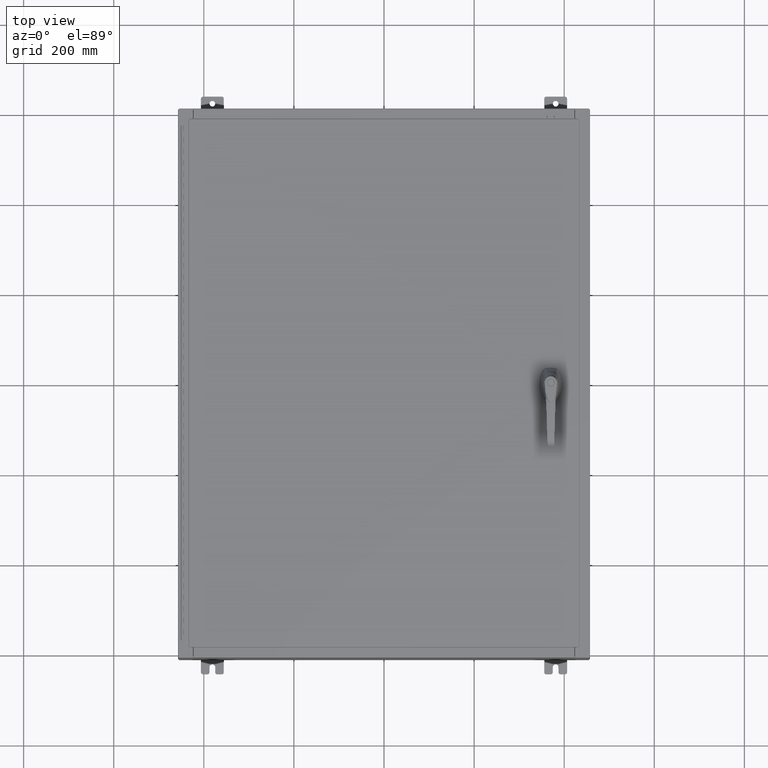
[diagram: clean part render]
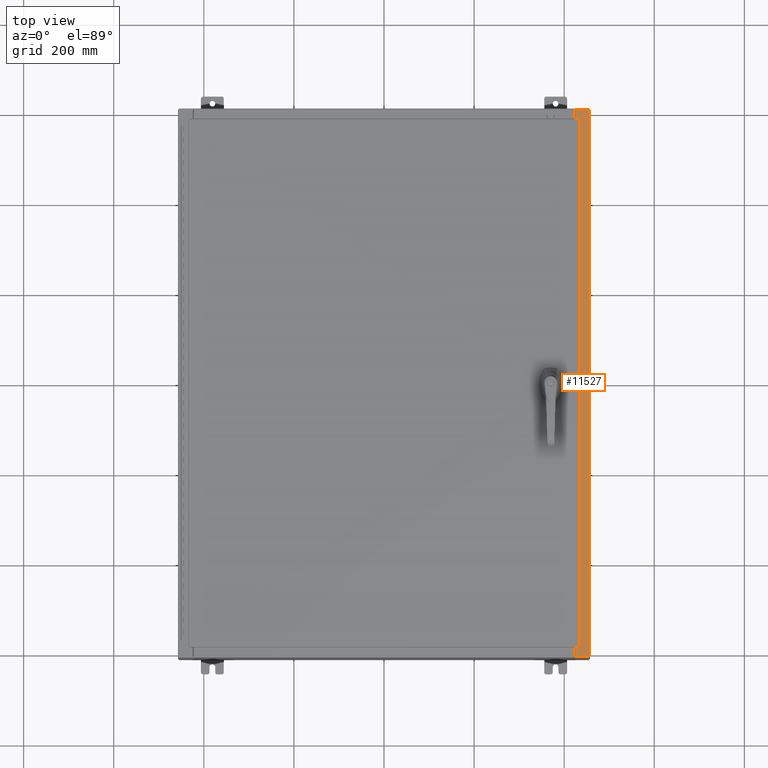
[diagram: same view with one face highlighted and labeled with its STEP entity id]
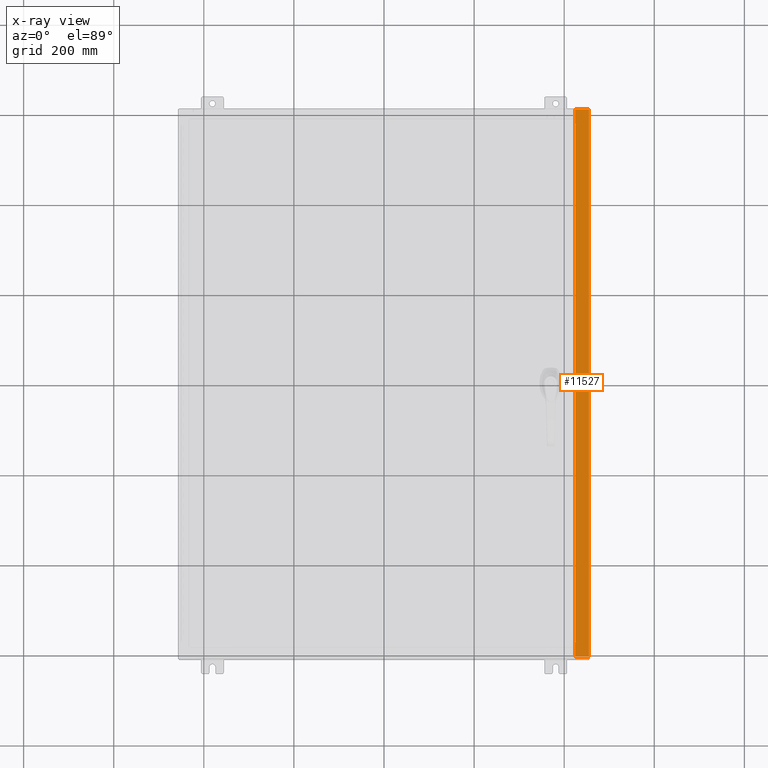
[diagram: x-ray of the same camera — body ghosted, the highlighted face saturated]
A machine part, top view. The second image highlights one B-rep face of the part: STEP entity #11527.
The next image is the same camera in x-ray: the body ghosted, the highlighted face saturated — about 0% of this face is hidden behind the body in this view.
In plain terms, the highlighted planar face has unit normal (-0, 0, -1).
Its self-contained STEP definition (entity closure, byte-faithful):
#1108 = VERTEX_POINT ( 'NONE', #105679 ) ;
#1683 = ORIENTED_EDGE ( 'NONE', *, *, #39744, .F. ) ;
#2512 = EDGE_CURVE ( 'NONE', #1108, #116192, #68899, .T. ) ;
#4372 = PLANE ( 'NONE',  #101994 ) ;
#5238 = ORIENTED_EDGE ( 'NONE', *, *, #133014, .T. ) ;
#5310 = DIRECTION ( 'NONE',  ( -0.0000000000000000000, -1.000000000000000000, -0.0000000000000000000 ) ) ;
#6908 = VECTOR ( 'NONE', #64470, 39.37007874015748100 ) ;
#7468 = LINE ( 'NONE', #85324, #35060 ) ;
#7719 = FACE_OUTER_BOUND ( 'NONE', #97168, .T. ) ;
#9457 = VECTOR ( 'NONE', #73568, 39.37007874015748100 ) ;
#10192 = LINE ( 'NONE', #95783, #6908 ) ;
#10603 = VECTOR ( 'NONE', #5310, 39.37007874015748100 ) ;
#10846 = DIRECTION ( 'NONE',  ( 1.000000000000000000, 0.0000000000000000000, 4.340572780400098900E-014 ) ) ;
#11527 = ADVANCED_FACE ( 'NONE', ( #7719 ), #4372, .F. ) ;
#14383 = DIRECTION ( 'NONE',  ( -7.132762385546384700E-015, 0.0000000000000000000, -1.000000000000000000 ) ) ;
#19543 = CARTESIAN_POINT ( 'NONE',  ( 16.75005000000003700, -22.61242499999998800, 11.92530000000001200 ) ) ;
#20183 = CARTESIAN_POINT ( 'NONE',  ( 16.69970000000003900, -23.92529999999998900, 11.92530000000000900 ) ) ;
#23927 = VERTEX_POINT ( 'NONE', #91250 ) ;
#24744 = CARTESIAN_POINT ( 'NONE',  ( 16.71270000000003700, 22.59374999999997200, 11.92530000000001200 ) ) ;
#26482 = CARTESIAN_POINT ( 'NONE',  ( 8.532114493236880700E-014, -23.92529999999998900, 11.92530000000013000 ) ) ;
#28628 = DIRECTION ( 'NONE',  ( 1.000000000000000000, 0.0000000000000000000, 0.0000000000000000000 ) ) ;
#29077 = CARTESIAN_POINT ( 'NONE',  ( 16.71270000000003700, 22.59374999999997200, 11.92530000000001200 ) ) ;
#29957 = DIRECTION ( 'NONE',  ( 1.000000000000000000, 0.0000000000000000000, 0.0000000000000000000 ) ) ;
#31813 = DIRECTION ( 'NONE',  ( 7.132762385546384700E-015, 0.0000000000000000000, 1.000000000000000000 ) ) ;
#33499 = VERTEX_POINT ( 'NONE', #20183 ) ;
#34973 = CARTESIAN_POINT ( 'NONE',  ( 16.69970000000003900, -22.63109999999998600, 11.92530000000000900 ) ) ;
#35060 = VECTOR ( 'NONE', #64402, 39.37007874015748100 ) ;
#35479 = CARTESIAN_POINT ( 'NONE',  ( 16.75005000000003700, -22.59374999999998900, 11.92530000000001200 ) ) ;
#35577 = VECTOR ( 'NONE', #88614, 39.37007874015748100 ) ;
#36378 = CARTESIAN_POINT ( 'NONE',  ( 17.91230000000003700, -23.92529999999998900, 11.92530000000000400 ) ) ;
#38159 = EDGE_CURVE ( 'NONE', #93035, #54317, #117883, .T. ) ;
#39744 = EDGE_CURVE ( 'NONE', #63281, #55728, #65697, .T. ) ;
#41337 = ORIENTED_EDGE ( 'NONE', *, *, #82451, .F. ) ;
#43395 = ORIENTED_EDGE ( 'NONE', *, *, #120226, .F. ) ;
#44931 = DIRECTION ( 'NONE',  ( 0.0000000000000000000, -1.000000000000000000, 0.0000000000000000000 ) ) ;
#47868 = VERTEX_POINT ( 'NONE', #34973 ) ;
#51165 = LINE ( 'NONE', #29077, #130668 ) ;
#51889 = ORIENTED_EDGE ( 'NONE', *, *, #38159, .T. ) ;
#54269 = EDGE_CURVE ( 'NONE', #67555, #23927, #78117, .T. ) ;
#54317 = VERTEX_POINT ( 'NONE', #123816 ) ;
#55728 = VERTEX_POINT ( 'NONE', #36378 ) ;
#57645 = CARTESIAN_POINT ( 'NONE',  ( 16.75005000000003700, -22.63109999999998600, 11.92530000000000900 ) ) ;
#63105 = CARTESIAN_POINT ( 'NONE',  ( 8.532114493236880700E-014, 23.92529999999998600, 11.92530000000013000 ) ) ;
#63281 = VERTEX_POINT ( 'NONE', #81473 ) ;
#63520 = VERTEX_POINT ( 'NONE', #125627 ) ;
#64402 = DIRECTION ( 'NONE',  ( -1.000000000000000000, 0.0000000000000000000, -4.340572780400098900E-014 ) ) ;
#64470 = DIRECTION ( 'NONE',  ( -0.0000000000000000000, 1.000000000000000000, -0.0000000000000000000 ) ) ;
#64588 = LINE ( 'NONE', #63105, #9457 ) ;
#65520 = ORIENTED_EDGE ( 'NONE', *, *, #75050, .F. ) ;
#65562 = VECTOR ( 'NONE', #108037, 39.37007874015748100 ) ;
#65697 = LINE ( 'NONE', #129506, #10603 ) ;
#66132 = VECTOR ( 'NONE', #10846, 39.37007874015748100 ) ;
#67555 = VERTEX_POINT ( 'NONE', #57645 ) ;
#68899 = CIRCLE ( 'NONE', #98547, 0.01867499999999949400 ) ;
#69097 = LINE ( 'NONE', #117057, #121030 ) ;
#72679 = LINE ( 'NONE', #103770, #66132 ) ;
#73568 = DIRECTION ( 'NONE',  ( -1.000000000000000000, 0.0000000000000000000, 7.132762385546384700E-015 ) ) ;
#75050 = EDGE_CURVE ( 'NONE', #116192, #54317, #7468, .T. ) ;
#76963 = DIRECTION ( 'NONE',  ( -1.000000000000000000, 0.0000000000000000000, 7.132762385546384700E-015 ) ) ;
#77254 = ORIENTED_EDGE ( 'NONE', *, *, #123725, .F. ) ;
#78117 = CIRCLE ( 'NONE', #111491, 0.01867499999999949400 ) ;
#81473 = CARTESIAN_POINT ( 'NONE',  ( 17.91230000000003700, 23.92529999999998600, 11.92530000000000400 ) ) ;
#82451 = EDGE_CURVE ( 'NONE', #63520, #131686, #10192, .T. ) ;
#83582 = ORIENTED_EDGE ( 'NONE', *, *, #2512, .F. ) ;
#85324 = CARTESIAN_POINT ( 'NONE',  ( 16.75005000000003700, 22.63109999999996800, 11.92530000000001200 ) ) ;
#86373 = ORIENTED_EDGE ( 'NONE', *, *, #117636, .T. ) ;
#88614 = DIRECTION ( 'NONE',  ( 1.000000000000000000, 0.0000000000000000000, -7.132762385546384700E-015 ) ) ;
#91250 = CARTESIAN_POINT ( 'NONE',  ( 16.75005000000003700, -22.59374999999998900, 11.92530000000000900 ) ) ;
#92048 = DIRECTION ( 'NONE',  ( 7.132762385546384700E-015, 0.0000000000000000000, 1.000000000000000000 ) ) ;
#93035 = VERTEX_POINT ( 'NONE', #114108 ) ;
#93916 = CARTESIAN_POINT ( 'NONE',  ( 16.75005000000003700, 22.61242499999997000, 11.92530000000001200 ) ) ;
#95783 = CARTESIAN_POINT ( 'NONE',  ( 16.71270000000003700, -22.59374999999998900, 11.92530000000001200 ) ) ;
#97168 = EDGE_LOOP ( 'NONE', ( #108830, #5238, #114793, #1683, #86373, #51889, #65520, #83582, #43395, #41337, #77254, #128494 ) ) ;
#98547 = AXIS2_PLACEMENT_3D ( 'NONE', #93916, #31813, #104339 ) ;
#101994 = AXIS2_PLACEMENT_3D ( 'NONE', #128613, #14383, #76963 ) ;
#103770 = CARTESIAN_POINT ( 'NONE',  ( 16.69970000000003900, -22.63109999999998600, 11.92530000000000900 ) ) ;
#104339 = DIRECTION ( 'NONE',  ( 1.000000000000000000, 0.0000000000000000000, 0.0000000000000000000 ) ) ;
#105679 = CARTESIAN_POINT ( 'NONE',  ( 16.75005000000003700, 22.59374999999997200, 11.92530000000000900 ) ) ;
#108037 = DIRECTION ( 'NONE',  ( -1.000000000000000000, 0.0000000000000000000, 0.0000000000000000000 ) ) ;
#108830 = ORIENTED_EDGE ( 'NONE', *, *, #118026, .F. ) ;
#111491 = AXIS2_PLACEMENT_3D ( 'NONE', #19543, #92048, #29957 ) ;
#111808 = DIRECTION ( 'NONE',  ( 0.0000000000000000000, -1.000000000000000000, 0.0000000000000000000 ) ) ;
#114108 = CARTESIAN_POINT ( 'NONE',  ( 16.69970000000003900, 23.92529999999998200, 11.92530000000000900 ) ) ;
#114666 = VECTOR ( 'NONE', #111808, 39.37007874015748100 ) ;
#114793 = ORIENTED_EDGE ( 'NONE', *, *, #130036, .T. ) ;
#115105 = LINE ( 'NONE', #26482, #35577 ) ;
#116192 = VERTEX_POINT ( 'NONE', #126331 ) ;
#117057 = CARTESIAN_POINT ( 'NONE',  ( 16.69970000000003900, 0.0000000000000000000, 11.92530000000000900 ) ) ;
#117636 = EDGE_CURVE ( 'NONE', #63281, #93035, #64588, .T. ) ;
#117883 = LINE ( 'NONE', #131721, #114666 ) ;
#118026 = EDGE_CURVE ( 'NONE', #47868, #67555, #72679, .T. ) ;
#120226 = EDGE_CURVE ( 'NONE', #131686, #1108, #51165, .T. ) ;
#120720 = LINE ( 'NONE', #35479, #65562 ) ;
#121030 = VECTOR ( 'NONE', #44931, 39.37007874015748100 ) ;
#123725 = EDGE_CURVE ( 'NONE', #23927, #63520, #120720, .T. ) ;
#123816 = CARTESIAN_POINT ( 'NONE',  ( 16.69970000000003900, 22.63109999999996800, 11.92530000000000900 ) ) ;
#125627 = CARTESIAN_POINT ( 'NONE',  ( 16.71270000000003700, -22.59374999999998900, 11.92530000000001200 ) ) ;
#126331 = CARTESIAN_POINT ( 'NONE',  ( 16.75005000000003700, 22.63109999999996800, 11.92530000000000900 ) ) ;
#128494 = ORIENTED_EDGE ( 'NONE', *, *, #54269, .F. ) ;
#128613 = CARTESIAN_POINT ( 'NONE',  ( 8.532114493236880700E-014, 0.0000000000000000000, 11.92530000000013000 ) ) ;
#129506 = CARTESIAN_POINT ( 'NONE',  ( 17.91230000000003700, -23.92529999999998900, 11.92530000000000400 ) ) ;
#130036 = EDGE_CURVE ( 'NONE', #33499, #55728, #115105, .T. ) ;
#130668 = VECTOR ( 'NONE', #28628, 39.37007874015748100 ) ;
#131686 = VERTEX_POINT ( 'NONE', #24744 ) ;
#131721 = CARTESIAN_POINT ( 'NONE',  ( 16.69970000000003900, 0.0000000000000000000, 11.92530000000000900 ) ) ;
#133014 = EDGE_CURVE ( 'NONE', #47868, #33499, #69097, .T. ) ;